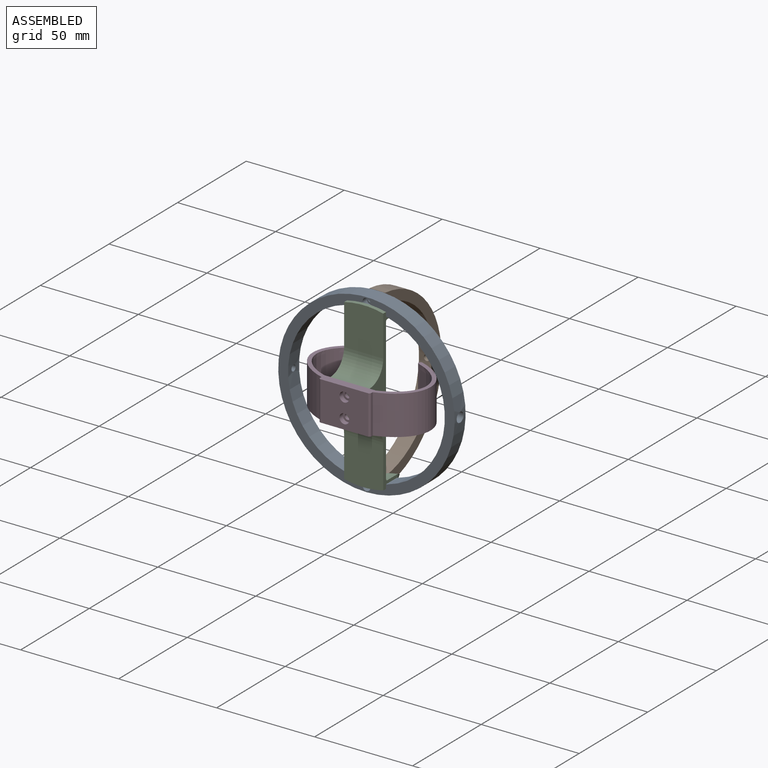
[diagram: assembled view]
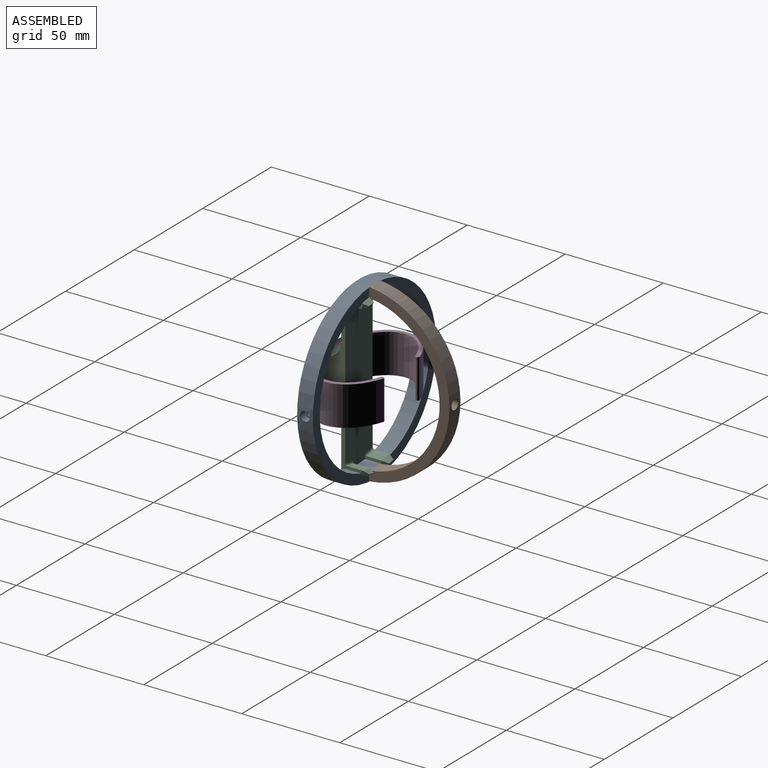
[diagram: assembled view, second angle]
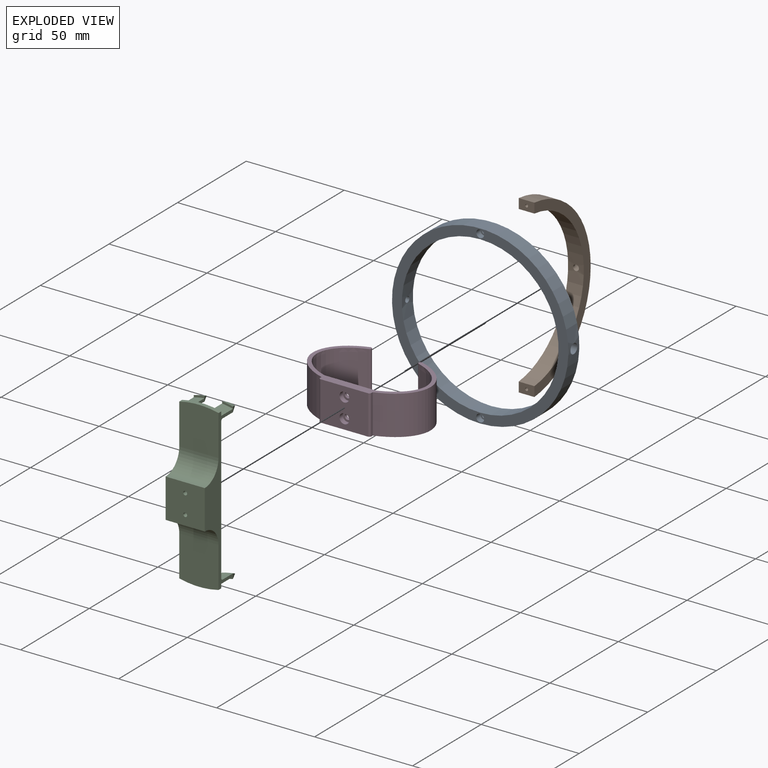
[diagram: exploded view]
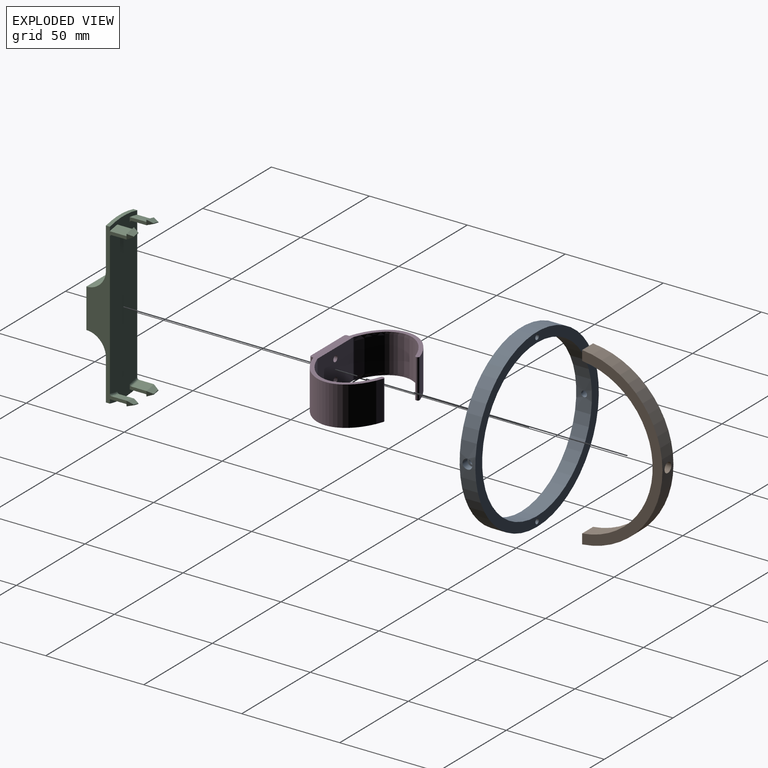
[diagram: exploded view, second angle]
ASSEMBLY  parts=4 mates=3
PART A: 16 faces, bbox 90x8x90 mm
  f0: cylinder r=45mm len=90mm, axis (0,1,0), area 2222.4mm2, adj f2,f3,f4,f7
  f1: cylinder r=40mm len=80mm, axis (0,1,0), area 1996.3mm2, adj f2,f3,f6,f9
  f2: plane 90x90mm, normal (0,-1,0), area 1310mm2, adj f0,f1,f12,f15
  f3: plane 90x90mm, normal (0,1,0), area 1325.4mm2, adj f0,f1,f10,f13
  f4: cylinder r=2.5mm len=5mm, axis (-1,0,0), area 54.4mm2, adj f0,f5
  f5: plane 5x5mm, normal (-1,0,0), area 12.6mm2, adj f4,f6
  f6: cylinder r=1.5mm len=3mm, axis (-1,0,0), area 14.3mm2, adj f1,f5
  f7: cylinder r=2.5mm len=5mm, axis (1,0,0), area 54.4mm2, adj f0,f8
  f8: plane 5x5mm, normal (1,0,0), area 12.6mm2, adj f7,f9
  f9: cylinder r=1.5mm len=3mm, axis (1,0,0), area 14.3mm2, adj f1,f8
  f10: cylinder r=1.25mm len=5mm, axis (0,-1,0), area 39.3mm2, adj f3,f11
  f11: plane 4x4mm, normal (0,-1,0), area 7.7mm2, adj f10,f12
  f12: cylinder r=2mm len=4mm, axis (0,-1,0), area 37.7mm2, adj f2,f11
  f13: cylinder r=1.25mm len=5mm, axis (0,-1,0), area 39.3mm2, adj f3,f14
  f14: plane 4x4mm, normal (0,-1,0), area 7.7mm2, adj f13,f15
  f15: cylinder r=2mm len=4mm, axis (0,-1,0), area 37.7mm2, adj f2,f14
PART B: 13 faces, bbox 41x8x89.6 mm
  f0: cylinder r=45mm len=89.64mm, axis (0,1,0), area 1047.2mm2, adj f2,f3,f4,f7,f8
  f1: cylinder r=40mm len=79.6mm, axis (0,1,0), area 934.1mm2, adj f2,f3,f6,f7,f8
  f2: plane 89.64x41mm, normal (0,-1,0), area 627.5mm2, adj f0,f1,f7,f8
  f3: plane 89.64x41mm, normal (0,1,0), area 627.5mm2, adj f0,f1,f7,f8
  f4: cylinder r=2.5mm len=5mm, axis (1,0,0), area 54.4mm2, adj f0,f5
  f5: plane 5x5mm, normal (1,0,0), area 12.6mm2, adj f4,f6
  f6: cylinder r=1.5mm len=3mm, axis (1,0,0), area 14.3mm2, adj f1,f5
  f7: plane 8x5.02mm, normal (-1,0,0), area 38.4mm2, adj f0,f1,f2,f3,f10
  f8: plane 8x5.02mm, normal (-1,0,0), area 38.4mm2, adj f0,f1,f2,f3,f12
  f9: cone r=0mm half-angle=59deg, axis (-1,0,0), area 2.1mm2, adj f10
  f10: cylinder r=0.75mm len=6mm, axis (-1,0,0), area 28.3mm2, adj f7,f9
  f11: cone r=0mm half-angle=59deg, axis (-1,0,0), area 2.1mm2, adj f12
  f12: cylinder r=0.75mm len=6mm, axis (-1,0,0), area 28.3mm2, adj f8,f11
PART C: 54 faces, bbox 84x23.5x20.6 mm
  f0: plane 84x20mm, normal (0,1,0), area 1607.9mm2, adj f3,f4,f12,f13,f16,f17,f18,f19
  f1: plane 22x20mm, normal (0,-1,0), area 432mm2, adj f3,f4,f6,f53
  f2: plane 22x20mm, normal (0,-1,0), area 432mm2, adj f3,f4,f7,f52
  f3: plane 81.58x20.5mm, normal (0,0,-1), area 432.9mm2, adj f0,f1,f2,f5,f6,f7,f18,f20
  f4: plane 81.58x20.5mm, normal (0,0,1), area 432.9mm2, adj f0,f1,f2,f5,f6,f7,f12,f14
  f5: plane 20x20mm, normal (0,-1,0), area 393.7mm2, adj f3,f4,f6,f7,f8,f10
  f6: cylinder r=10mm len=20mm, axis (0,0,-1), area 314.2mm2, adj f1,f3,f4,f5
  f7: cylinder r=10mm len=20mm, axis (0,0,-1), area 314.2mm2, adj f2,f3,f4,f5
  f8: cylinder r=1mm len=10mm, axis (0,-1,0), area 62.8mm2, adj f5,f9
  f9: plane 2x2mm, normal (0,-1,0), area 3.1mm2, adj f8
  f10: cylinder r=1mm len=10mm, axis (0,-1,0), area 62.8mm2, adj f5,f11
  f11: plane 2x2mm, normal (0,-1,0), area 3.1mm2, adj f10
  f12: cylinder r=40mm len=8.5mm, axis (0,-1,0), area 47.6mm2, adj f0,f4,f13,f51
  f13: plane 8.5x2.52mm, normal (0,0,-1), area 13.1mm2, adj f0,f12,f14,f27,f49
  f14: cylinder r=38.5mm len=7.5mm, axis (0,-1,0), area 42mm2, adj f4,f13,f27,f46
  f15: cylinder r=38.5mm len=7.5mm, axis (0,-1,0), area 42mm2, adj f4,f16,f24,f40
  f16: plane 8.5x2.52mm, normal (0,0,-1), area 13.1mm2, adj f0,f15,f17,f24,f41
  f17: cylinder r=40mm len=8.5mm, axis (0,-1,0), area 47.6mm2, adj f0,f4,f16,f45
  f18: cylinder r=40mm len=8.5mm, axis (0,-1,0), area 47.6mm2, adj f0,f3,f19,f33
  f19: plane 8.5x2.52mm, normal (0,0,1), area 13.1mm2, adj f0,f18,f20,f25,f28
  f20: cylinder r=38.5mm len=7.5mm, axis (0,-1,0), area 42mm2, adj f3,f19,f25,f29
  f21: cylinder r=38.5mm len=7.5mm, axis (0,-1,0), area 42mm2, adj f3,f22,f26,f37
  f22: plane 8.5x2.52mm, normal (0,0,1), area 13.1mm2, adj f0,f21,f23,f26,f34
  f23: cylinder r=40mm len=8.5mm, axis (0,-1,0), area 47.6mm2, adj f0,f3,f22,f39
  f24: torus R=37.5mm, axis (0,1,0), area 8.8mm2, adj f0,f4,f15,f16
  f25: torus R=37.5mm, axis (0,1,0), area 8.8mm2, adj f0,f3,f19,f20
  f26: torus R=37.5mm, axis (0,1,0), area 8.8mm2, adj f0,f3,f21,f22
  f27: torus R=37.5mm, axis (0,1,0), area 8.8mm2, adj f0,f4,f13,f14
  f28: plane 3.02x2.53mm, normal (0,0.34,0.94), area 4.5mm2, adj f19,f29,f31,f32,f33
  f29: cone r=38.5mm half-angle=20deg, axis (0,1,0), area 14.3mm2, adj f20,f28,f30,f32
  f30: plane 3.01x2.59mm, normal (0,0.34,-0.94), area 4.6mm2, adj f3,f29,f31,f32,f33
  f31: cone r=41mm half-angle=20deg, axis (0,-1,0), area 14.3mm2, adj f28,f30,f32,f33
  f32: plane 3.32x0.94mm, normal (0,1,0), area 1.1mm2, adj f28,f29,f30,f31
  f33: plane 5.5x2.02mm, normal (0,-1,0), area 5.6mm2, adj f18,f28,f30,f31
  f34: plane 3.02x2.53mm, normal (0,0.34,0.94), area 4.5mm2, adj f22,f35,f37,f38,f39
  f35: cone r=41mm half-angle=20deg, axis (0,-1,0), area 14.3mm2, adj f34,f36,f38,f39
  f36: plane 3.01x2.59mm, normal (0,0.34,-0.94), area 4.6mm2, adj f3,f35,f37,f38,f39
  f37: cone r=38.5mm half-angle=20deg, axis (0,1,0), area 14.3mm2, adj f21,f34,f36,f38
  f38: plane 3.32x0.94mm, normal (0,1,0), area 1.1mm2, adj f34,f35,f36,f37
  f39: plane 5.5x2.02mm, normal (0,-1,0), area 5.6mm2, adj f23,f34,f35,f36
  f40: cone r=38.5mm half-angle=20deg, axis (0,1,0), area 14.3mm2, adj f15,f41,f43,f44
  f41: plane 3.02x2.53mm, normal (0,0.34,-0.94), area 4.5mm2, adj f16,f40,f42,f44,f45
  f42: cone r=41mm half-angle=20deg, axis (0,-1,0), area 14.3mm2, adj f41,f43,f44,f45
  f43: plane 3.01x2.59mm, normal (0,0.34,0.94), area 4.6mm2, adj f4,f40,f42,f44,f45
  f44: plane 3.32x0.94mm, normal (0,1,0), area 1.1mm2, adj f40,f41,f42,f43
  f45: plane 5.5x2.02mm, normal (0,-1,0), area 5.6mm2, adj f17,f41,f42,f43
  f46: cone r=38.5mm half-angle=20deg, axis (0,1,0), area 14.3mm2, adj f14,f47,f49,f50
  f47: plane 3.01x2.59mm, normal (0,0.34,0.94), area 4.6mm2, adj f4,f46,f48,f50,f51
  f48: cone r=41mm half-angle=20deg, axis (0,-1,0), area 14.3mm2, adj f47,f49,f50,f51
  f49: plane 3.02x2.53mm, normal (0,0.34,-0.94), area 4.5mm2, adj f13,f46,f48,f50,f51
  f50: plane 3.32x0.94mm, normal (0,1,0), area 1.1mm2, adj f46,f47,f48,f49
  f51: plane 5.5x2.02mm, normal (0,-1,0), area 5.6mm2, adj f12,f47,f48,f49
  f52: cylinder r=42mm len=20mm, axis (0,1,0), area 40.4mm2, adj f0,f2,f3,f4
  f53: cylinder r=42mm len=20mm, axis (0,1,0), area 40.4mm2, adj f0,f1,f3,f4
PART D: 25 faces, bbox 20x38x60 mm
  f0: extruded ~31.86x20mm, area 933.5mm2, adj f10,f11,f12,f18
  f1: plane 20x0mm, normal (0,0,-1), area 0mm2, adj f12,f13
  f2: extruded ~35.92x20mm, area 1050.3mm2, adj f3,f10,f11,f13
  f3: plane 20x1mm, normal (0,0,1), area 20mm2, adj f2,f10,f11,f14
  f4: plane 24.15x20mm, normal (0,-1,0), area 443.8mm2, adj f10,f11,f14,f15,f21,f24
  f5: plane 20x1mm, normal (0,0,-1), area 20mm2, adj f6,f10,f11,f15
  f6: extruded ~35.92x20mm, area 1050.3mm2, adj f5,f10,f11,f16
  f7: plane 20x0mm, normal (0,0,1), area 0mm2, adj f16,f17
  f8: extruded ~31.92x20mm, area 936.9mm2, adj f9,f10,f11,f17
  f9: plane 25.99x20mm, normal (0,1,0), area 505.6mm2, adj f8,f10,f11,f18,f19,f22
  f10: plane 60x37.97mm, normal (1,0,0), area 308.9mm2, adj f0,f2,f3,f4,f5,f6,f8,f9
  f11: plane 60x37.97mm, normal (-1,0,0), area 308.9mm2, adj f0,f2,f3,f4,f5,f6,f8,f9
  f12: cylinder r=1mm len=20mm, axis (-1,0,0), area 25mm2, adj f0,f1,f10,f11
  f13: cylinder r=1mm len=20mm, axis (-1,0,0), area 37.8mm2, adj f1,f2,f10,f11
  f14: cylinder r=1mm len=20mm, axis (-1,0,0), area 31.4mm2, adj f3,f4,f10,f11
  f15: cylinder r=1mm len=20mm, axis (-1,0,0), area 31.4mm2, adj f4,f5,f10,f11
  f16: cylinder r=1mm len=20mm, axis (-1,0,0), area 37.8mm2, adj f6,f7,f10,f11
  f17: cylinder r=1mm len=20mm, axis (-1,0,0), area 25mm2, adj f7,f8,f10,f11
  f18: cylinder r=1mm len=20mm, axis (-1,0,0), area 6.7mm2, adj f0,f9,f10,f11
  f19: cylinder r=1.5mm len=3mm, axis (0,-1,0), area 15.2mm2, adj f9,f20
  f20: plane 5x5mm, normal (0,-1,0), area 12.6mm2, adj f19,f21
  f21: cylinder r=2.5mm len=5mm, axis (0,-1,0), area 39.3mm2, adj f4,f20
  f22: cylinder r=1.5mm len=3mm, axis (0,-1,0), area 15.2mm2, adj f9,f23
  f23: plane 5x5mm, normal (0,-1,0), area 12.6mm2, adj f22,f24
  f24: cylinder r=2.5mm len=5mm, axis (0,-1,0), area 39.3mm2, adj f4,f23
PLACE A t=(81.6,60.89,20.67)mm fixed
PLACE B rot(axis=(0,0,1),90deg) t=(81.6,60.89,20.84)mm
PLACE C rot(axis=(0,-1,0),90deg) t=(81.6,56.89,20.67)mm
PLACE D rot(axis=(0,1,0),90deg) t=(81.6,60.78,20.67)mm
MATE fastened D.f22 <-> C.f8  axis (0,1,0) through (81.6,44.89,15.67)mm
MATE fastened B.f9 <-> A.f10  axis (0,-1,0) through (81.6,64.89,63.17)mm
MATE fastened A.f0 <-> C.f18  axis (0,-1,0) through (81.6,56.89,20.67)mm
